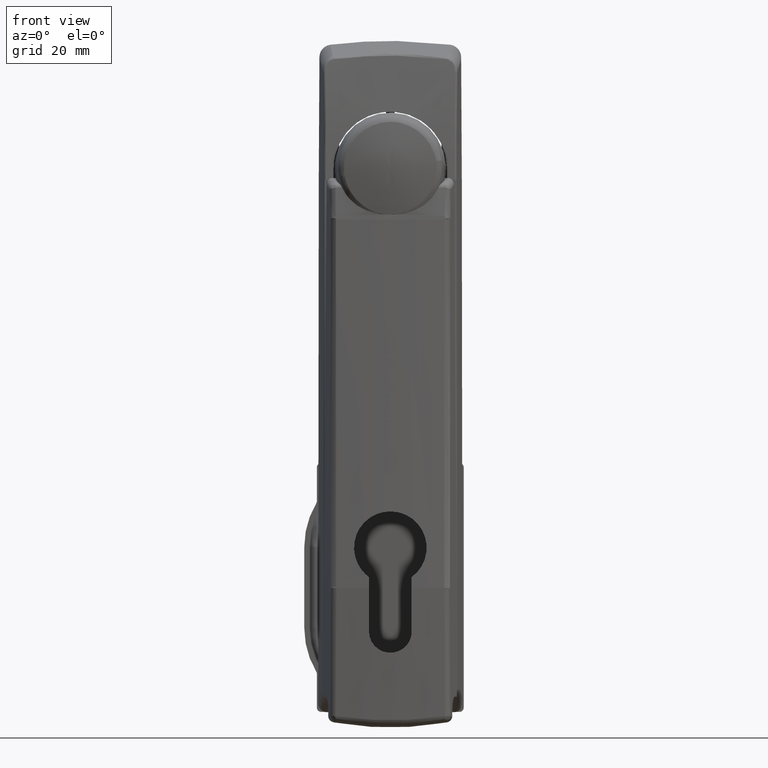
[diagram: clean part render]
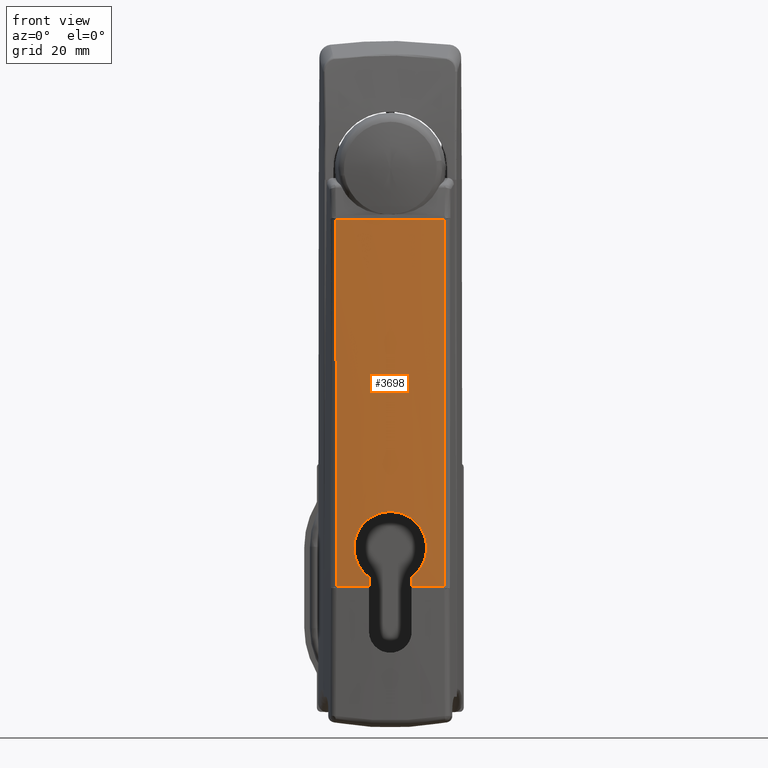
[diagram: same view with one face highlighted and labeled with its STEP entity id]
A machine part, front view. The second image highlights one B-rep face of the part: STEP entity #3698.
In plain terms, the highlighted face is a freeform B-spline surface patch.
Its self-contained STEP definition (entity closure, byte-faithful):
#423=CARTESIAN_POINT('',(-21.547050766315099,-12.856177518687380,-99.791529856878796));
#424=VERTEX_POINT('',#423);
#434=CARTESIAN_POINT('',(-21.920691410452250,-5.100000242232390,-99.791311237107209));
#435=VERTEX_POINT('',#434);
#436=CARTESIAN_POINT('',(-21.920691410452250,-5.100000242232390,-99.791311237107209));
#437=CARTESIAN_POINT('',(-21.849973156722470,-7.687705170417490,-99.791352555393587));
#438=CARTESIAN_POINT('',(-21.725434048015249,-10.273659716115420,-99.791425333787444));
#439=CARTESIAN_POINT('',(-21.547050766315099,-12.856177518687320,-99.791529856878697));
#440=QUASI_UNIFORM_CURVE('',3,(#436,#437,#438,#439),.UNSPECIFIED.,.F.,.U.);
#441=EDGE_CURVE('',#435,#424,#440,.T.);
#491=CARTESIAN_POINT('',(-21.920691410452001,5.100000242241610,-99.791311237107394));
#492=VERTEX_POINT('',#491);
#502=CARTESIAN_POINT('',(-21.547050766315099,12.856177518687399,-99.791529856878796));
#503=VERTEX_POINT('',#502);
#504=CARTESIAN_POINT('',(-21.547050766315099,12.856177518687399,-99.791529856878697));
#505=CARTESIAN_POINT('',(-21.725434048015028,10.273659716118560,-99.791425333787444));
#506=CARTESIAN_POINT('',(-21.849973156722179,7.687705170423650,-99.791352555393885));
#507=CARTESIAN_POINT('',(-21.920691410452001,5.100000242241620,-99.791311237107493));
#508=QUASI_UNIFORM_CURVE('',3,(#504,#505,#506,#507),.UNSPECIFIED.,.F.,.U.);
#509=EDGE_CURVE('',#503,#492,#508,.T.);
#554=CARTESIAN_POINT('',(-21.841541712774401,-5.100000242232400,-97.486700853992517));
#555=VERTEX_POINT('',#554);
#556=CARTESIAN_POINT('',(-21.920691410452228,-5.100000242232396,-99.791311237107195));
#557=CARTESIAN_POINT('',(-21.894308175552212,-5.100000242232396,-99.023107776149317));
#558=CARTESIAN_POINT('',(-21.867924942992840,-5.100000242232400,-98.254904315111048));
#559=CARTESIAN_POINT('',(-21.841541712770951,-5.100000242232400,-97.486700853992517));
#560=B_SPLINE_CURVE_WITH_KNOTS('',3,(#556,#557,#558,#559),.UNSPECIFIED.,.F.,.U.,(4,4),(0.000273947402239,0.002579916546135),.UNSPECIFIED.);
#561=EDGE_CURVE('',#435,#555,#560,.T.);
#710=CARTESIAN_POINT('',(-21.841541712774401,5.100000242241610,-97.486700853985809));
#711=VERTEX_POINT('',#710);
#712=CARTESIAN_POINT('',(-21.841541712774401,5.100000242241610,-97.486700853985809));
#713=CARTESIAN_POINT('',(-21.867924942994410,5.100000242241610,-98.254904315106643));
#714=CARTESIAN_POINT('',(-21.894308175551888,5.100000242241610,-99.023107776147270));
#715=CARTESIAN_POINT('',(-21.920691410451980,5.100000242241610,-99.791311237107436));
#716=B_SPLINE_CURVE_WITH_KNOTS('',3,(#712,#713,#714,#715),.UNSPECIFIED.,.F.,.U.,(4,4),(0.0,0.002305969143903),.UNSPECIFIED.);
#717=EDGE_CURVE('',#711,#492,#716,.T.);
#765=CARTESIAN_POINT('',(-21.841541712774401,-5.100000242232400,-97.486700853992517));
#766=CARTESIAN_POINT('',(-21.822216647959209,-5.468790128733466,-97.217497697039619));
#767=CARTESIAN_POINT('',(-21.801648423827029,-5.811407832979850,-96.922927963038759));
#768=CARTESIAN_POINT('',(-21.758878151869681,-6.446549841916458,-96.285187653831443));
#769=CARTESIAN_POINT('',(-21.736672782558241,-6.739070100206146,-95.942013363969025));
#770=CARTESIAN_POINT('',(-21.708339992844021,-7.072440701735467,-95.481696005522366));
#771=CARTESIAN_POINT('',(-21.702631937599310,-7.137626029287053,-95.387845404654726));
#772=CARTESIAN_POINT('',(-21.691252629741200,-7.263767343040959,-95.198340465683401));
#773=CARTESIAN_POINT('',(-21.685577721896479,-7.324776301312360,-95.102632443509762));
#774=CARTESIAN_POINT('',(-21.668613034320281,-7.501715885657357,-94.812686165908730));
#775=CARTESIAN_POINT('',(-21.657383496750722,-7.611568606331296,-94.615630034537034));
#776=CARTESIAN_POINT('',(-21.624053062760680,-7.917231671074056,-94.013376748694725));
#777=CARTESIAN_POINT('',(-21.602311806913701,-8.089293689445670,-93.597162593413557));
#778=CARTESIAN_POINT('',(-21.576087988205959,-8.263924578470654,-93.058113221356919));
#779=CARTESIAN_POINT('',(-21.570890738161971,-8.296816724003879,-92.949358851201794));
#780=CARTESIAN_POINT('',(-21.560599744585971,-8.358464109784375,-92.729928785398272));
#781=CARTESIAN_POINT('',(-21.555514774303852,-8.387158543185665,-92.619429934456349));
#782=CARTESIAN_POINT('',(-21.540556247646830,-8.466307521136287,-92.287940753675315));
#783=CARTESIAN_POINT('',(-21.530937194784901,-8.510094489665921,-92.066070454148900));
#784=CARTESIAN_POINT('',(-21.503170563853370,-8.615133340557827,-91.397884998021837));
#785=CARTESIAN_POINT('',(-21.486113919050641,-8.650221288740413,-90.949010480202304));
#786=CARTESIAN_POINT('',(-21.466703097902268,-8.650001295164996,-90.383602636092050));
#787=CARTESIAN_POINT('',(-21.462916398621999,-8.647740664138716,-90.270304118118162));
#788=CARTESIAN_POINT('',(-21.455536123800599,-8.638723935541876,-90.043267114743671));
#789=CARTESIAN_POINT('',(-21.451936938776608,-8.631952547543209,-89.929344670181237));
#790=CARTESIAN_POINT('',(-21.441471170644260,-8.604873088110265,-89.588177545198661));
#791=CARTESIAN_POINT('',(-21.434976978029670,-8.577952279325189,-89.362908354971225));
#792=CARTESIAN_POINT('',(-21.416867995209991,-8.471346233318380,-88.693441833965679));
#793=CARTESIAN_POINT('',(-21.406625638516889,-8.365970267318996,-88.255547876276978));
#794=CARTESIAN_POINT('',(-21.393739929478510,-8.156560085901797,-87.611311246392944));
#795=CARTESIAN_POINT('',(-21.389858029058949,-8.078160660266152,-87.398675863851011));
#796=CARTESIAN_POINT('',(-21.384623751479779,-7.947318400882744,-87.082974849898733));
#797=CARTESIAN_POINT('',(-21.382975556597440,-7.901425315916323,-86.978156412719002));
#798=CARTESIAN_POINT('',(-21.379895585334140,-7.806000907860476,-86.771430100185313));
#799=CARTESIAN_POINT('',(-21.378460036824201,-7.756387733064198,-86.669309001162830));
#800=CARTESIAN_POINT('',(-21.371772749451040,-7.498958971147745,-86.164821257402650));
#801=CARTESIAN_POINT('',(-21.367987684140569,-7.263225868543404,-85.780695997871163));
#802=CARTESIAN_POINT('',(-21.364114714416122,-6.865543149833687,-85.233316872652622));
#803=CARTESIAN_POINT('',(-21.363125442594271,-6.725601567816749,-85.055680520394290));
#804=CARTESIAN_POINT('',(-21.362032236042872,-6.504384312587138,-84.796614527333219));
#805=CARTESIAN_POINT('',(-21.361732978391181,-6.428758883503193,-84.711492055193233));
#806=CARTESIAN_POINT('',(-21.361254679440151,-6.273668338868410,-84.543756732253726));
#807=CARTESIAN_POINT('',(-21.361077044213619,-6.194651417812614,-84.461631738035820));
#808=CARTESIAN_POINT('',(-21.360461998030811,-5.792878397300013,-84.060148808055459));
#809=CARTESIAN_POINT('',(-21.360835065104641,-5.449612921676189,-83.767433298138698));
#810=CARTESIAN_POINT('',(-21.362096862762780,-4.902740073993209,-83.370027917435081));
#811=CARTESIAN_POINT('',(-21.362635922767119,-4.715095140760576,-83.244536526525010));
#812=CARTESIAN_POINT('',(-21.363557722751551,-4.425472355196363,-83.066927039507064));
#813=CARTESIAN_POINT('',(-21.363883911721160,-4.327570633656814,-83.009497179376098));
#814=CARTESIAN_POINT('',(-21.364563946607650,-4.129005190253230,-82.898236708216785));
#815=CARTESIAN_POINT('',(-21.364918610603532,-4.028113883012051,-82.844294874981216));
#816=CARTESIAN_POINT('',(-21.366723073296711,-3.520330135714781,-82.585606094034290));
#817=CARTESIAN_POINT('',(-21.368259819746172,-3.102795235006376,-82.413089648990649));
#818=CARTESIAN_POINT('',(-21.370976221422641,-2.245900186293139,-82.134513649377638));
#819=CARTESIAN_POINT('',(-21.372157735636861,-1.806540430565944,-82.028452917169702));
#820=CARTESIAN_POINT('',(-21.373181122421730,-1.243164131882050,-81.939042107033828));
#821=CARTESIAN_POINT('',(-21.373363000412692,-1.129973725663068,-81.923373089913483));
#822=CARTESIAN_POINT('',(-21.373675765117159,-0.904133323980414,-81.896633795844664));
#823=CARTESIAN_POINT('',(-21.373807077828150,-0.791258483418634,-81.885526381379051));
#824=CARTESIAN_POINT('',(-21.374123314379240,-0.452768148763514,-81.858896346464206));
#825=CARTESIAN_POINT('',(-21.374230189393121,-0.227286637041819,-81.850055722427669));
#826=CARTESIAN_POINT('',(-21.374232050011159,0.448629203420841,-81.849900898910036));
#827=CARTESIAN_POINT('',(-21.373802584949850,0.898538132701462,-81.884789320688455));
#828=CARTESIAN_POINT('',(-21.372788281883189,1.460022930509094,-81.973353388861611));
#829=CARTESIAN_POINT('',(-21.372561546633818,1.572475240563233,-81.993367854335929));
#830=CARTESIAN_POINT('',(-21.372066811560082,1.796332679922587,-82.037809847532287));
#831=CARTESIAN_POINT('',(-21.371799524539441,1.907461297503299,-82.062173189716859));
#832=CARTESIAN_POINT('',(-21.370946553718401,2.238487072530222,-82.141582602208302));
#833=CARTESIAN_POINT('',(-21.370309482396671,2.456027803348571,-82.202938279211253));
#834=CARTESIAN_POINT('',(-21.368271803205900,3.099403193867626,-82.411765336618487));
#835=CARTESIAN_POINT('',(-21.366738926739181,3.516047332709166,-82.583845984673857));
#836=CARTESIAN_POINT('',(-21.364942814730309,4.021259872615016,-82.840701787350568));
#837=CARTESIAN_POINT('',(-21.364590048082860,4.121518258658802,-82.894172725398462));
#838=CARTESIAN_POINT('',(-21.363907897926101,4.320441869613086,-83.005380968772215));
#839=CARTESIAN_POINT('',(-21.363578303387989,4.419193413198816,-83.063183428448866));
#840=CARTESIAN_POINT('',(-21.362649581661142,4.710445080540189,-83.241480282410194));
#841=CARTESIAN_POINT('',(-21.362107322211731,4.898806971482816,-83.367311654689530));
#842=CARTESIAN_POINT('',(-21.360838578194759,5.446907321784822,-83.765187496772526));
#843=CARTESIAN_POINT('',(-21.360465407203218,5.789762013732495,-84.057491827624006));
#844=CARTESIAN_POINT('',(-21.361188451389900,6.270044714318917,-84.536746646515482));
#845=CARTESIAN_POINT('',(-21.361644282342301,6.424447161836651,-84.703328248390051));
#846=CARTESIAN_POINT('',(-21.363098405279779,6.721513875500784,-85.050577043044697));
#847=CARTESIAN_POINT('',(-21.364087654274460,6.862206123900269,-85.228942112606717));
#848=CARTESIAN_POINT('',(-21.367958533362710,7.261331713760420,-85.777659012912991));
#849=CARTESIAN_POINT('',(-21.371740748464859,7.497013642154228,-86.161627215699752));
#850=CARTESIAN_POINT('',(-21.379718807372001,7.805194827916220,-86.764653474486437));
#851=CARTESIAN_POINT('',(-21.382762863007329,7.900330914292693,-86.970194881979324));
#852=CARTESIAN_POINT('',(-21.387976957301898,8.031361492331870,-87.285476784843880));
#853=CARTESIAN_POINT('',(-21.389827534042372,8.073171950309506,-87.391967974390013));
#854=CARTESIAN_POINT('',(-21.393727311203449,8.152240017679750,-87.605700014018055));
#855=CARTESIAN_POINT('',(-21.395777370344909,8.189542262760728,-87.713019466365893));
#856=CARTESIAN_POINT('',(-21.406539509655790,8.365071119434274,-88.251847539672340));
#857=CARTESIAN_POINT('',(-21.416786171582100,8.470551615874056,-88.690007556640282));
#858=CARTESIAN_POINT('',(-21.434830833227689,8.577245982405771,-89.357707078908689));
#859=CARTESIAN_POINT('',(-21.441291672460441,8.604183672296884,-89.582024874586750));
#860=CARTESIAN_POINT('',(-21.451682041568692,8.631400004925668,-89.921178724187826));
#861=CARTESIAN_POINT('',(-21.455262042142451,8.638271201253582,-90.034676719876998));
#862=CARTESIAN_POINT('',(-21.462660538698579,8.647537804945829,-90.262581110077775));
#863=CARTESIAN_POINT('',(-21.466470993398680,8.649913117772451,-90.376726194385256));
#864=CARTESIAN_POINT('',(-21.485955864882602,8.650550088585934,-90.944853288186906));
#865=CARTESIAN_POINT('',(-21.503037300138061,8.615455701208711,-91.394442554531039));
#866=CARTESIAN_POINT('',(-21.530749360707940,8.510894686965484,-92.061666508575087));
#867=CARTESIAN_POINT('',(-21.540334934808271,8.467347066622594,-92.282875625248010));
#868=CARTESIAN_POINT('',(-21.555215168863459,8.388806878599029,-92.612867593215512));
#869=CARTESIAN_POINT('',(-21.560258876637128,8.360421167151465,-92.722560954915224));
#870=CARTESIAN_POINT('',(-21.570509911603239,8.299177149300478,-92.941331550698322));
#871=CARTESIAN_POINT('',(-21.575727667437992,8.266248505527175,-93.050622062918393));
#872=CARTESIAN_POINT('',(-21.602086610981349,8.091083905491745,-93.592858615061132));
#873=CARTESIAN_POINT('',(-21.623879505340089,7.918666392041107,-94.010107249191421));
#874=CARTESIAN_POINT('',(-21.668288736336422,7.511715627597790,-94.812810993650899));
#875=CARTESIAN_POINT('',(-21.690907619885881,7.277181161469827,-95.198265342421294));
#876=CARTESIAN_POINT('',(-21.719281864282401,6.943785156596487,-95.659516750924354));
#877=CARTESIAN_POINT('',(-21.724964809958809,6.875030761006424,-95.750781287531495));
#878=CARTESIAN_POINT('',(-21.736233572123400,6.734609641438441,-95.929714808946486));
#879=CARTESIAN_POINT('',(-21.741831132164670,6.662808650760073,-96.017576726215481));
#880=CARTESIAN_POINT('',(-21.758496884711281,6.442692740253048,-96.276408023232136));
#881=CARTESIAN_POINT('',(-21.769438353807249,6.289672095077005,-96.442630224191106));
#882=CARTESIAN_POINT('',(-21.801617832915881,5.811977099548095,-96.922509207411167));
#883=CARTESIAN_POINT('',(-21.822216708252881,5.468788978085510,-97.217498536969970));
#884=CARTESIAN_POINT('',(-21.841541712770450,5.100000242241516,-97.486700853985909));
#885=B_SPLINE_CURVE_WITH_KNOTS('',3,(#765,#766,#767,#768,#769,#770,#771,#772,#773,#774,#775,#776,#777,#778,#779,#780,#781,#782,#783,#784,#785,#786,#787,#788,#789,#790,#791,#792,#793,#794,#795,#796,#797,#798,#799,#800,#801,#802,#803,#804,#805,#806,#807,#808,#809,#810,#811,#812,#813,#814,#815,#816,#817,#818,#819,#820,#821,#822,#823,#824,#825,#826,#827,#828,#829,#830,#831,#832,#833,#834,#835,#836,#837,#838,#839,#840,#841,#842,#843,#844,#845,#846,#847,#848,#849,#850,#851,#852,#853,#854,#855,#856,#857,#858,#859,#860,#861,#862,#863,#864,#865,#866,#867,#868,#869,#870,#871,#872,#873,#874,#875,#876,#877,#878,#879,#880,#881,#882,#883,#884),.UNSPECIFIED.,.F.,.U.,(4,2,2,2,2,2,2,2,2,2,2,2,2,2,2,2,2,2,2,2,2,2,2,2,2,2,2,2,2,2,2,2,2,2,2,2,2,2,2,2,2,2,2,2,2,2,2,2,2,2,2,2,2,2,2,2,2,2,2,4),(0.0,0.031250000000003,0.062500000000006,0.070312500000007,0.078125000000007,0.093750000000008,0.125000000000009,0.132812500000010,0.140625000000010,0.156250000000011,0.187500000000014,0.195312500000014,0.203125000000015,0.218750000000017,0.250000000000021,0.265625000000023,0.273437500000024,0.281250000000025,0.312500000000027,0.328125000000028,0.335937500000028,0.343750000000029,0.375000000000030,0.390625000000031,0.398437500000031,0.406250000000031,0.437500000000033,0.468750000000034,0.476562500000034,0.484375000000034,0.500000000000035,0.531250000000037,0.539062500000037,0.546875000000037,0.562500000000038,0.593750000000039,0.601562500000039,0.609375000000040,0.625000000000040,0.656250000000040,0.671875000000040,0.687500000000041,0.718750000000042,0.734375000000042,0.742187500000041,0.750000000000041,0.781250000000037,0.796875000000035,0.804687500000034,0.812500000000033,0.843750000000028,0.859375000000025,0.867187500000024,0.875000000000022,0.906250000000017,0.937500000000012,0.945312500000010,0.953125000000008,0.968750000000005,1.0),.UNSPECIFIED.);
#886=EDGE_CURVE('',#555,#711,#885,.T.);
#1262=CARTESIAN_POINT('',(-18.533777903911400,12.947874776042800,-12.271877187870800));
#1263=VERTEX_POINT('',#1262);
#1271=CARTESIAN_POINT('',(-18.533777903911499,-12.947874776042800,-12.271877187872001));
#1272=VERTEX_POINT('',#1271);
#1273=CARTESIAN_POINT('',(-18.533777903911499,-12.947874776042800,-12.271877187872001));
#1274=CARTESIAN_POINT('',(-18.684284173678758,-10.793092530969680,-12.276065889946530));
#1275=CARTESIAN_POINT('',(-18.797159026160362,-8.635664053104442,-12.279288361584380));
#1276=CARTESIAN_POINT('',(-18.947629605588020,-4.319176781249503,-12.283607520170930));
#1277=CARTESIAN_POINT('',(-18.985249393136549,-2.160037246373125,-12.284704255336900));
#1278=CARTESIAN_POINT('',(-18.985249432347128,2.160033870646018,-12.284704256474191));
#1279=CARTESIAN_POINT('',(-18.947629677158620,4.319174406443266,-12.283607522232019));
#1280=CARTESIAN_POINT('',(-18.797159021794879,8.635664500025902,-12.279288361452450));
#1281=CARTESIAN_POINT('',(-18.684284173621268,10.793092531791871,-12.276065889944899));
#1282=CARTESIAN_POINT('',(-18.533777903911400,12.947874776042800,-12.271877187870780));
#1283=B_SPLINE_CURVE_WITH_KNOTS('',3,(#1273,#1274,#1275,#1276,#1277,#1278,#1279,#1280,#1281,#1282),.UNSPECIFIED.,.F.,.U.,(4,2,2,2,4),(0.0,0.250000000000000,0.500000000000000,0.750000000000000,1.0),.UNSPECIFIED.);
#1284=EDGE_CURVE('',#1272,#1263,#1283,.T.);
#1549=CARTESIAN_POINT('',(-18.533777903911432,12.947874776042790,-12.271877187870800));
#1550=CARTESIAN_POINT('',(-19.035760593199640,12.935834142759180,-26.858497014226209));
#1551=CARTESIAN_POINT('',(-19.537907925417962,12.921469384935310,-41.445109111099242));
#1552=CARTESIAN_POINT('',(-20.542368897058441,12.890387559189570,-70.618325002453929));
#1553=CARTESIAN_POINT('',(-21.044685364177941,12.873630431651710,-85.204928698223569));
#1554=CARTESIAN_POINT('',(-21.547050766315099,12.856177518687369,-99.791529856878753));
#1555=B_SPLINE_CURVE_WITH_KNOTS('',3,(#1549,#1550,#1551,#1552,#1553,#1554),.UNSPECIFIED.,.F.,.U.,(4,2,4),(0.0,0.500000000000000,1.0),.UNSPECIFIED.);
#1556=EDGE_CURVE('',#1263,#503,#1555,.T.);
#2458=CARTESIAN_POINT('',(-21.547050766315088,-12.856177518687350,-99.791529856878739));
#2459=CARTESIAN_POINT('',(-21.044685364251421,-12.873630431649129,-85.204928700356078));
#2460=CARTESIAN_POINT('',(-20.542368897441118,-12.890387559177110,-70.618325013565737));
#2461=CARTESIAN_POINT('',(-19.537907925803669,-12.921469384924020,-41.445109122302291));
#2462=CARTESIAN_POINT('',(-19.035760593059521,-12.935834142762520,-26.858497010154458));
#2463=CARTESIAN_POINT('',(-18.533777903911471,-12.947874776042790,-12.271877187871979));
#2464=B_SPLINE_CURVE_WITH_KNOTS('',3,(#2458,#2459,#2460,#2461,#2462,#2463),.UNSPECIFIED.,.F.,.U.,(4,2,4),(0.0,0.500000000000000,1.0),.UNSPECIFIED.);
#2465=EDGE_CURVE('',#424,#1272,#2464,.T.);
#3671=CARTESIAN_POINT('',(-21.545772885235149,-13.009826405210900,-100.065097219555800));
#3672=CARTESIAN_POINT('',(-22.151096585938280,-4.350585784247436,-100.065097219555800));
#3673=CARTESIAN_POINT('',(-22.151096585938230,4.350585784247408,-100.065097219555800));
#3674=CARTESIAN_POINT('',(-21.545772885235149,13.009826405210930,-100.065097219555800));
#3675=CARTESIAN_POINT('',(-20.532410363802160,-13.050475200409680,-70.653525671692307));
#3676=CARTESIAN_POINT('',(-21.142164819108810,-4.364296176093679,-70.653525671692307));
#3677=CARTESIAN_POINT('',(-21.142164819108810,4.364296176093643,-70.653525671692307));
#3678=CARTESIAN_POINT('',(-20.532410363802111,13.050475200409741,-70.653525671692307));
#3679=CARTESIAN_POINT('',(-19.519047842369151,-13.091123995608470,-41.241954123828847));
#3680=CARTESIAN_POINT('',(-20.133233052279341,-4.378006567939921,-41.241954123828847));
#3681=CARTESIAN_POINT('',(-20.133233052279341,4.378006567939877,-41.241954123828847));
#3682=CARTESIAN_POINT('',(-19.519047842369119,13.091123995608539,-41.241954123828847));
#3683=CARTESIAN_POINT('',(-18.505685320936120,-13.131772790807229,-11.830382575965359));
#3684=CARTESIAN_POINT('',(-19.124301285449882,-4.391716959786165,-11.830382575965359));
#3685=CARTESIAN_POINT('',(-19.124301285449921,4.391716959786102,-11.830382575965359));
#3686=CARTESIAN_POINT('',(-18.505685320936120,13.131772790807339,-11.830382575965359));
#3687=B_SPLINE_SURFACE_WITH_KNOTS('',3,3,((#3671,#3675,#3679,#3683),(#3672,#3676,#3680,#3684),(#3673,#3677,#3681,#3685),(#3674,#3678,#3682,#3686)),.UNSPECIFIED.,.F.,.F.,.U.,(4,4),(4,4),(0.0,26.285763347642700),(0.0,88.287155756403237),.UNSPECIFIED.);
#3688=ORIENTED_EDGE('',*,*,#1556,.T.);
#3689=ORIENTED_EDGE('',*,*,#509,.T.);
#3690=ORIENTED_EDGE('',*,*,#717,.F.);
#3691=ORIENTED_EDGE('',*,*,#886,.F.);
#3692=ORIENTED_EDGE('',*,*,#561,.F.);
#3693=ORIENTED_EDGE('',*,*,#441,.T.);
#3694=ORIENTED_EDGE('',*,*,#2465,.T.);
#3695=ORIENTED_EDGE('',*,*,#1284,.T.);
#3696=EDGE_LOOP('',(#3688,#3689,#3690,#3691,#3692,#3693,#3694,#3695));
#3697=FACE_OUTER_BOUND('',#3696,.T.);
#3698=ADVANCED_FACE('',(#3697),#3687,.F.);